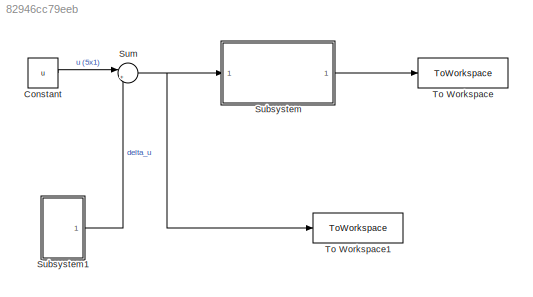
MODEL slx_82946cc79eeb
KIND model
CONFIG AbsTol = auto
CONFIG EnableMultiTasking = off
CONFIG FixedStep = auto
CONFIG MaxStep = auto
CONFIG MinStep = auto
CONFIG RelTol = 1e-3
CONFIG SampleTimeConstraint = Unconstrained
CONFIG SolverName = VariableStepAuto
CONFIG StartTime = 0.0
CONFIG StopTime = TF
BLOCK [Constant] Constant
  Value = u
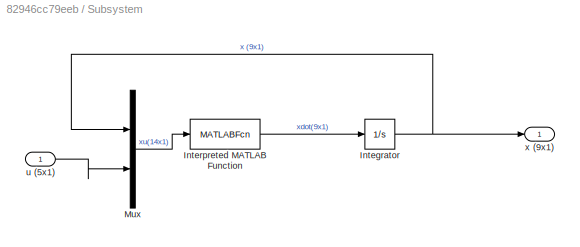
BLOCK [SubSystem] Subsystem
  Ports = [1, 1]
  RequestExecContextInheritance = off
BLOCK [Integrator] Subsystem/Integrator
  InitialCondition = x0
  Ports = [1, 1]
BLOCK [MATLABFcn] Subsystem/Interpreted MATLAB Function
  MATLABFcn = RCAM_model(u(1:9),u(10:14))
  Ports = [1, 1]
BLOCK [Mux] Subsystem/Mux
  DisplayOption = bar
  Inputs = 2
  Ports = [2, 1]
BLOCK [Inport] Subsystem/u (5x1)
BLOCK [Outport] Subsystem/x (9x1)
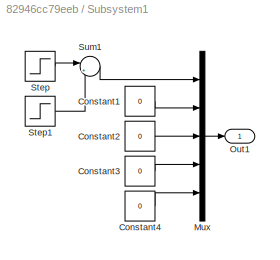
BLOCK [SubSystem] Subsystem1
  Ports = [0, 1]
  RequestExecContextInheritance = off
BLOCK [Constant] Subsystem1/Constant1
  Value = 0
BLOCK [Constant] Subsystem1/Constant2
  Value = 0
BLOCK [Constant] Subsystem1/Constant3
  Value = 0
BLOCK [Constant] Subsystem1/Constant4
  Value = 0
BLOCK [Mux] Subsystem1/Mux
  DisplayOption = bar
  Inputs = 5
  Ports = [5, 1]
BLOCK [Outport] Subsystem1/Out1
BLOCK [Step] Subsystem1/Step
  After = 5*pi/180
  SampleTime = 0
  Time = 30
BLOCK [Step] Subsystem1/Step1
  After = -5*pi/180
  SampleTime = 0
  Time = 32
BLOCK [Sum] Subsystem1/Sum1
  Inputs = |++
  Ports = [2, 1]
BLOCK [Sum] Sum
  Inputs = |++
  Ports = [2, 1]
BLOCK [ToWorkspace] To Workspace
  FixptAsFi = on
  MaxDataPoints = inf
  Ports = [1]
  SampleTime = -1
  SaveFormat = Timeseries
  VariableName = simX
BLOCK [ToWorkspace] To Workspace1
  FixptAsFi = on
  MaxDataPoints = inf
  Ports = [1]
  SampleTime = -1
  SaveFormat = Timeseries
  VariableName = simU
LINE Constant:1 -> Sum:1
NET Subsystem/Integrator:1 -> Subsystem/Mux:1, Subsystem/x (9x1):1
LINE Subsystem/Interpreted MATLAB Function:1 -> Subsystem/Integrator:1
LINE Subsystem/Mux:1 -> Subsystem/Interpreted MATLAB Function:1
LINE Subsystem/u (5x1):1 -> Subsystem/Mux:2
LINE Subsystem1/Constant1:1 -> Subsystem1/Mux:2
LINE Subsystem1/Constant2:1 -> Subsystem1/Mux:3
LINE Subsystem1/Constant3:1 -> Subsystem1/Mux:4
LINE Subsystem1/Constant4:1 -> Subsystem1/Mux:5
LINE Subsystem1/Mux:1 -> Subsystem1/Out1:1
LINE Subsystem1/Step1:1 -> Subsystem1/Sum1:2
LINE Subsystem1/Step:1 -> Subsystem1/Sum1:1
LINE Subsystem1/Sum1:1 -> Subsystem1/Mux:1
LINE Subsystem1:1 -> Sum:2
LINE Subsystem:1 -> To Workspace:1
NET Sum:1 -> Subsystem:1, To Workspace1:1
note: NET lines group one-source signal fan-out (src -> all destinations, sorted); 1:1 wires keep LINE
